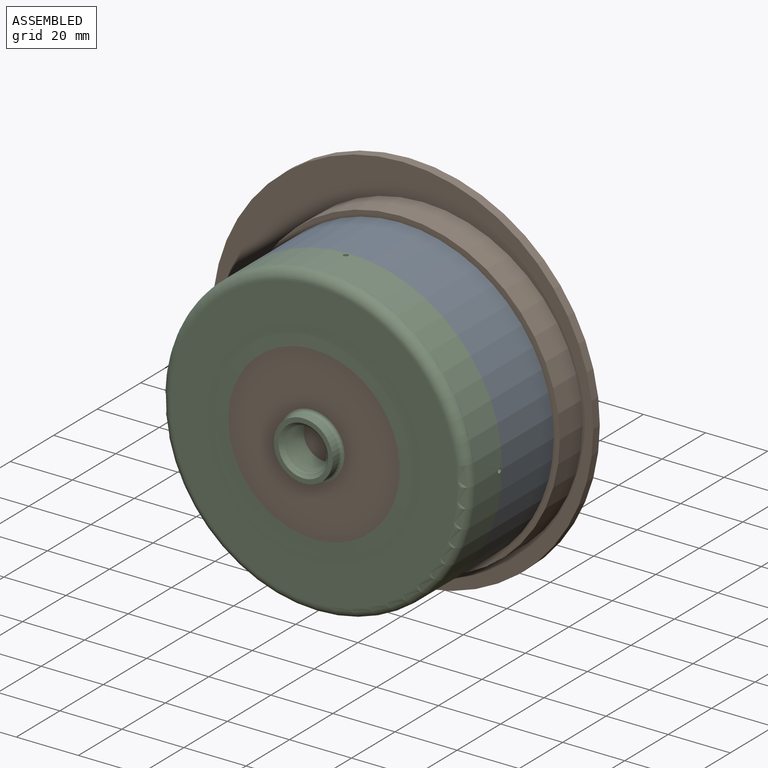
[diagram: assembled view]
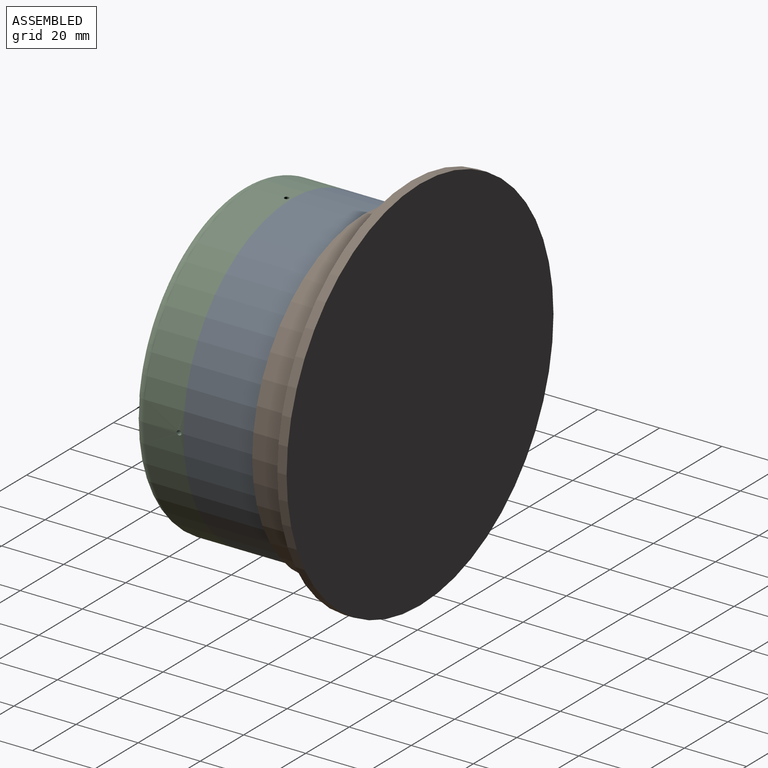
[diagram: assembled view, second angle]
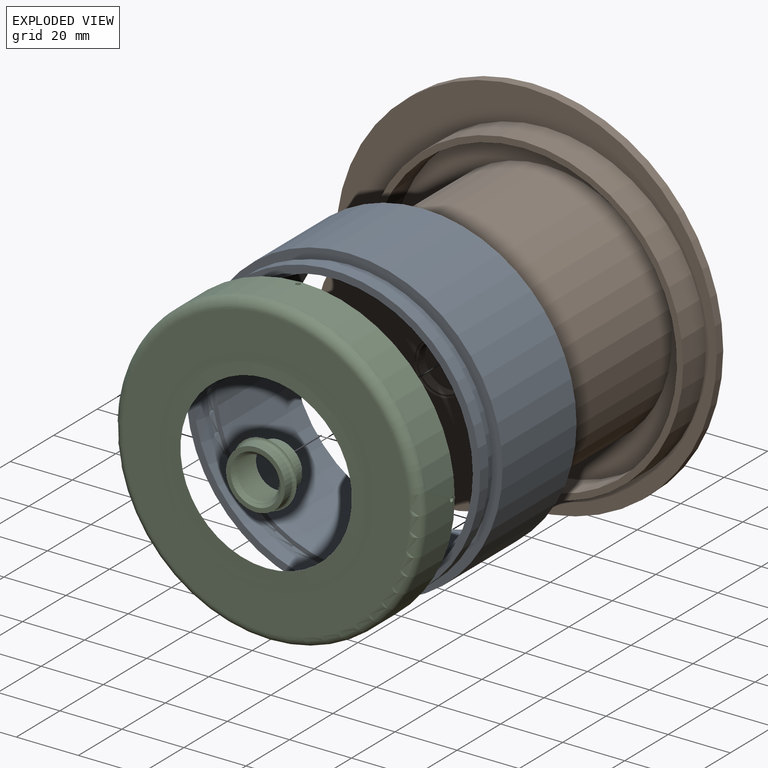
[diagram: exploded view]
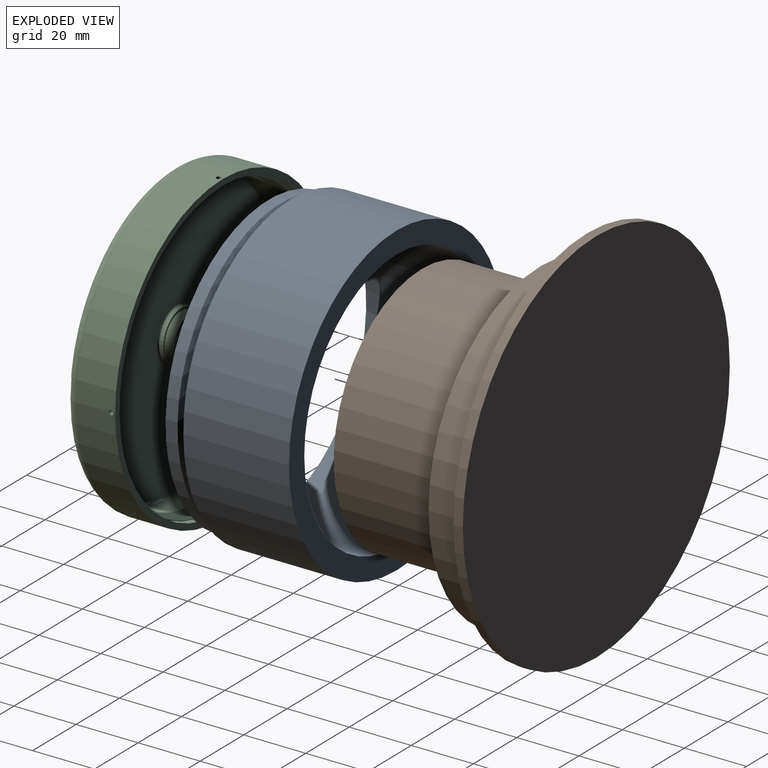
[diagram: exploded view, second angle]
ASSEMBLY  parts=3 mates=2
PART A: 11 faces, bbox 99x41.3x99 mm
  f0: plane 94.75x94.75mm, normal (0,-1,0), area 689.2mm2, adj f7,f8
  f1: cylinder r=42.5mm len=85mm, axis (0,-1,0), area 9159.3mm2, adj f3,f9
  f2: cylinder r=49.5mm len=99mm, axis (0,-1,0), area 10590.2mm2, adj f3,f6
  f3: plane 99x99mm, normal (0,1,0), area 2023.2mm2, adj f1,f2
  f4: cone r=46.25mm half-angle=45deg, axis (0,-1,0), area 468mm2, adj f5,f7
  f5: cylinder r=46.25mm len=92.5mm, axis (0,-1,0), area 653.8mm2, adj f4,f6
  f6: plane 99x99mm, normal (0,-1,0), area 977.6mm2, adj f2,f5
  f7: cylinder r=47.38mm len=94.75mm, axis (0,-1,0), area 1153.5mm2, adj f0,f4
  f8: cylinder r=45mm len=90mm, axis (0,-1,0), area 1696.5mm2, adj f0,f10
  f9: plane 88x88mm, normal (0,-1,0), area 407.6mm2, adj f1,f10
  f10: torus R=44mm, axis (0,-1,0), area 440.5mm2, adj f8,f9
PART B: 13 faces, bbox 122.8x51.8x122.8 mm
  f0: cylinder r=40.43mm len=80.85mm, axis (0,-1,0), area 12382.4mm2, adj f1,f8
  f1: plane 80.85x80.85mm, normal (0,-1,0), area 4912.3mm2, adj f0,f10
  f2: cylinder r=49.45mm len=98.9mm, axis (0,1,0), area 3262.4mm2, adj f4,f8
  f3: cylinder r=51.45mm len=102.9mm, axis (0,1,0), area 3394.3mm2, adj f4,f5
  f4: plane 102.9x102.9mm, normal (0,-1,0), area 634mm2, adj f2,f3
  f5: plane 122.8x122.8mm, normal (0,-1,0), area 3527.6mm2, adj f3,f7
  f6: plane 122.8x122.8mm, normal (0,1,0), area 11843.7mm2, adj f7
  f7: cylinder r=61.4mm len=122.8mm, axis (0,-1,0), area 1157.4mm2, adj f5,f6
  f8: plane 98.9x98.9mm, normal (0,-1,0), area 2548.2mm2, adj f0,f2
  f9: plane 16.8x16.8mm, normal (0,-1,0), area 33mm2, adj f10,f12
  f10: cylinder r=8.4mm len=16.8mm, axis (0,-1,0), area 39.6mm2, adj f1,f9
  f11: plane 15.5x15.5mm, normal (0,-1,0), area 188.7mm2, adj f12
  f12: cylinder r=7.75mm len=15.5mm, axis (0,-1,0), area 158.3mm2, adj f9,f11
PART C: 34 faces, bbox 108.2x22.4x110.5 mm
  f0: cylinder r=46.5mm len=93mm, axis (0,1,0), area -948.9mm2, adj f1,f2,f20,f22
  f1: bspline ~109.39x94.73mm, area 1389.1mm2, adj f0,f2,f20,f22
  f2: bspline ~109.39x94.73mm, area 1736.8mm2, adj f0,f1,f20,f22
  f3: cylinder r=0.75mm len=2.01mm, axis (-1,0,0), area 9.4mm2, adj f4,f21
  f4: cylinder r=49.5mm len=99mm, axis (0,1,0), area 3958.7mm2, adj f3,f6,f17,f18,f19,f31
  f5: plane 19x19mm, normal (0,-1,0), area 82.5mm2, adj f15,f25
  f6: plane 99x99mm, normal (0,1,0), area 609.5mm2, adj f4,f21
  f7: cylinder r=6.5mm len=13mm, axis (0,1,0), area -0.1mm2, adj f23,f26,f27,f28
  f8: cylinder r=8.25mm len=16.5mm, axis (0,1,0), area 57mm2, adj f9,f30
  f9: plane 16.5x16.5mm, normal (0,1,0), area 31.2mm2, adj f8,f10
  f10: cylinder r=7.62mm len=15.25mm, axis (0,1,0), area 143.7mm2, adj f9,f11
  f11: plane 15.25x15.25mm, normal (0,1,0), area 5.9mm2, adj f10,f24
  f12: cylinder r=47.5mm len=95mm, axis (0,1,0), area 1193.8mm2, adj f22,f29
  f13: plane 91x91mm, normal (0,1,0), area 6263.4mm2, adj f29,f30
  f14: plane 92.5x92.5mm, normal (0,-1,0), area 3627.7mm2, adj f31,f33
  f15: cylinder r=9.5mm len=19mm, axis (0,1,0), area 182mm2, adj f5,f32
  f16: cone r=29.5mm half-angle=87.1deg, axis (0,1,0), area 2057.6mm2, adj f32,f33
  f17: cylinder r=0.75mm len=2.01mm, axis (0,0,1), area 9.4mm2, adj f4,f21
  f18: cylinder r=0.75mm len=2.01mm, axis (0,0,-1), area 9.4mm2, adj f4,f21
  f19: cylinder r=0.75mm len=2.01mm, axis (1,0,0), area 9.4mm2, adj f4,f21
  f20: plane 96.08x96.08mm, normal (0,1,0), area 168mm2, adj f0,f1,f2,f21
  f21: cylinder r=47.5mm len=95mm, axis (0,1,0), area 664.3mm2, adj f3,f6,f17,f18,f19,f20
  f22: torus R=46.5mm, axis (0,1,0), area 328.4mm2, adj f0,f1,f2,f12
  f23: cone r=7.5mm half-angle=45deg, axis (0,1,0), area 0mm2, adj f7,f24,f28
  f24: cone r=7.5mm half-angle=45deg, axis (0,1,0), area 36.1mm2, adj f11,f23,f27,f28
  f25: cone r=8mm half-angle=45deg, axis (0,-1,0), area 67.3mm2, adj f5,f26,f27,f28
  f26: cone r=8mm half-angle=45deg, axis (0,-1,0), area 3.2mm2, adj f7,f25,f27,f28
  f27: bspline ~17.01x14.73mm, area 439.7mm2, adj f7,f24,f25,f26,f28
  f28: bspline ~17.01x14.73mm, area 391.3mm2, adj f7,f23,f24,f25,f26,f27
  f29: torus R=45.5mm, axis (0,-1,0), area 923.3mm2, adj f12,f13
  f30: torus R=8.75mm, axis (0,-1,0), area 41.6mm2, adj f8,f13
  f31: torus R=46.25mm, axis (0,-1,0), area 1549.9mm2, adj f4,f14
  f32: torus R=10.5mm, axis (0,1,0), area 94.1mm2, adj f15,f16
  f33: torus R=31.37mm, axis (0,-1,0), area 694.5mm2, adj f14,f16
PLACE A t=(38.44,10.88,34.87)mm
PLACE B t=(38.44,3.43,34.87)mm
PLACE C t=(38.44,18.13,34.87)mm
MATE fastened C.f0 <-> A.f1  axis (0,1,0) through (38.44,18.13,34.87)mm
MATE parallel A.f1 <-> B.f3  axis (0,1,0) through (38.44,52.18,34.87)mm
